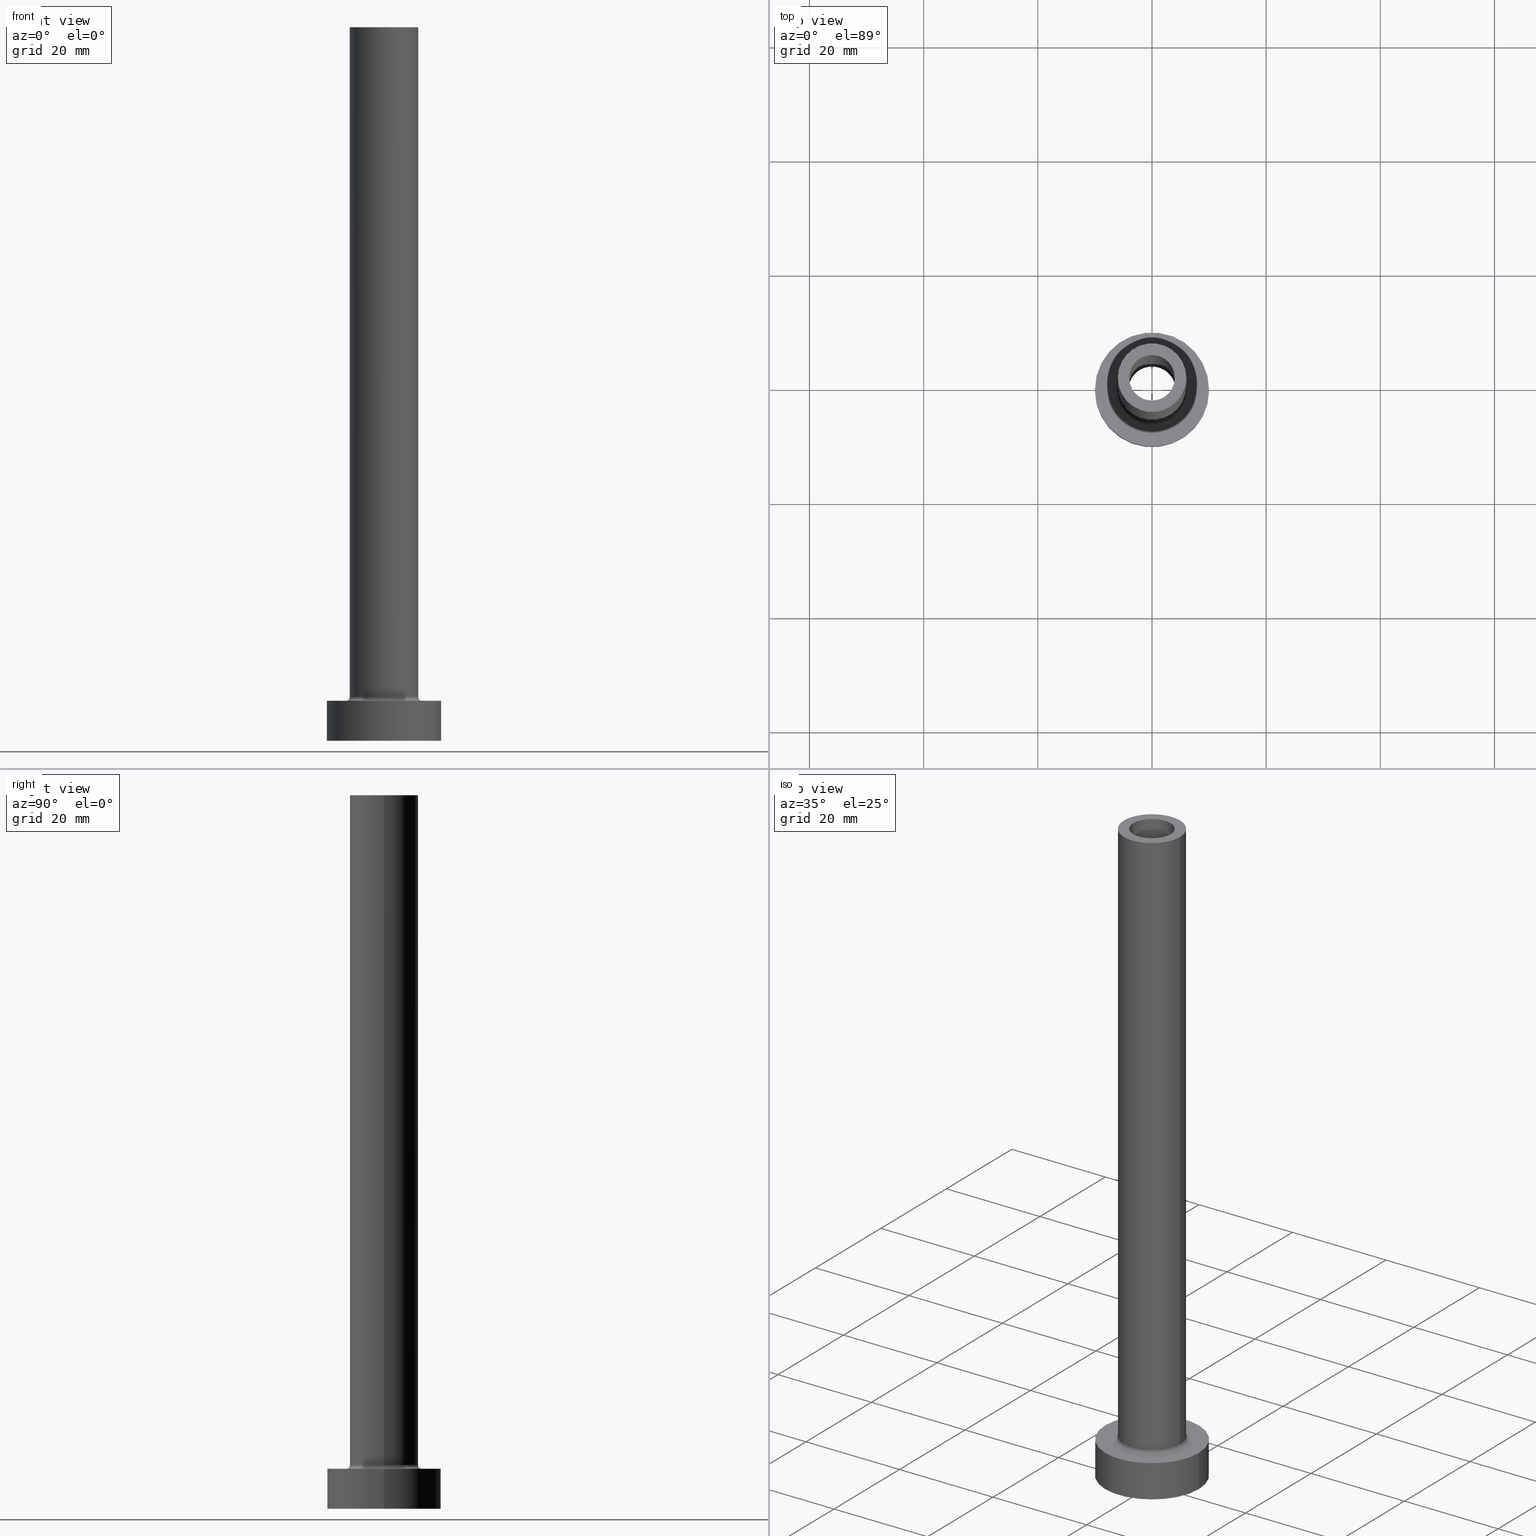
[diagram: canonical four-view strip — front | top / right | iso, engineering-drawing reading convention]
A machine part, canonical four-view strip (front | top / right | iso — engineering-drawing reading convention). The complete STEP part file that produces these views, byte-faithful:
ISO-10303-21;
HEADER;
FILE_DESCRIPTION (( 'STEP AP203' ),
    '1' );
FILE_NAME ('c54d.STEP',
    '2023-02-13T09:11:04',
    ( '' ),
    ( '' ),
    'SwSTEP 2.0',
    'SolidWorks 2019',
    '' );
FILE_SCHEMA (( 'CONFIG_CONTROL_DESIGN' ));
ENDSEC;

DATA;
#1 = FACE_OUTER_BOUND ( 'NONE', #267, .T. ) ;
#2 = EDGE_CURVE ( 'NONE', #231, #159, #436, .T. ) ;
#3 = FACE_OUTER_BOUND ( 'NONE', #362, .T. ) ;
#4 = ORGANIZATION ( 'NEUR�EN�', 'NEUR�EN�', '' ) ;
#5 = DIRECTION ( 'NONE',  ( -1.000000000000000000, 0.000000000000000000, 0.000000000000000000 ) ) ;
#6 = FACE_OUTER_BOUND ( 'NONE', #125, .T. ) ;
#7 = APPROVAL ( #75, 'NEUR�EN�' ) ;
#8 = CIRCLE ( 'NONE', #262, 4.000000000000000000 ) ;
#9 = VECTOR ( 'NONE', #151, 1000.000000000000000 ) ;
#10 = LOCAL_TIME ( 10, 11, 4.000000000000000000, #170 ) ;
#11 = COORDINATED_UNIVERSAL_TIME_OFFSET ( 1, 0, .AHEAD. ) ;
#12 = CARTESIAN_POINT ( 'NONE',  ( -4.150000000000000355, 0.000000000000000000, 91.73797256769668707 ) ) ;
#13 = EDGE_CURVE ( 'NONE', #193, #417, #164, .T. ) ;
#14 = DIRECTION ( 'NONE',  ( 1.000000000000000000, 0.000000000000000000, 0.000000000000000000 ) ) ;
#15 = PLANE ( 'NONE',  #63 ) ;
#16 = DIRECTION ( 'NONE',  ( 0.000000000000000000, 0.000000000000000000, 1.000000000000000000 ) ) ;
#17 = CARTESIAN_POINT ( 'NONE',  ( 0.000000000000000000, 0.000000000000000000, 80.00000000000000000 ) ) ;
#18 = AXIS2_PLACEMENT_3D ( 'NONE', #392, #40, #363 ) ;
#19 = ORIENTED_EDGE ( 'NONE', *, *, #404, .T. ) ;
#20 =( LENGTH_UNIT ( ) NAMED_UNIT ( * ) SI_UNIT ( .MILLI., .METRE. ) );
#21 = EDGE_LOOP ( 'NONE', ( #425, #316, #273, #22 ) ) ;
#22 = ORIENTED_EDGE ( 'NONE', *, *, #302, .F. ) ;
#23 = EDGE_LOOP ( 'NONE', ( #331, #28 ) ) ;
#24 = CARTESIAN_POINT ( 'NONE',  ( 0.000000000000000000, 0.000000000000000000, 7.000000000000000000 ) ) ;
#25 = DIRECTION ( 'NONE',  ( -0.000000000000000000, -0.000000000000000000, -1.000000000000000000 ) ) ;
#26 = CARTESIAN_POINT ( 'NONE',  ( 0.000000000000000000, 0.000000000000000000, 125.0000000000000000 ) ) ;
#27 = EDGE_CURVE ( 'NONE', #334, #236, #229, .T. ) ;
#28 = ORIENTED_EDGE ( 'NONE', *, *, #412, .T. ) ;
#29 = PLANE ( 'NONE',  #408 ) ;
#30 = VERTEX_POINT ( 'NONE', #357 ) ;
#31 = DIRECTION ( 'NONE',  ( 0.000000000000000000, 0.000000000000000000, -1.000000000000000000 ) ) ;
#32 = ORIENTED_EDGE ( 'NONE', *, *, #346, .F. ) ;
#33 = DIRECTION ( 'NONE',  ( -1.000000000000000000, 0.000000000000000000, 0.000000000000000000 ) ) ;
#34 = PERSON_AND_ORGANIZATION ( #314, #4 ) ;
#35 = ORIENTED_EDGE ( 'NONE', *, *, #303, .F. ) ;
#36 = DIRECTION ( 'NONE',  ( 1.000000000000000000, 0.000000000000000000, 0.000000000000000000 ) ) ;
#37 = AXIS2_PLACEMENT_3D ( 'NONE', #278, #400, #173 ) ;
#38 = DATE_AND_TIME ( #364, #454 ) ;
#39 = EDGE_LOOP ( 'NONE', ( #269, #88 ) ) ;
#40 = DIRECTION ( 'NONE',  ( 0.000000000000000000, 0.000000000000000000, 1.000000000000000000 ) ) ;
#41 = APPROVAL_ROLE ( '' ) ;
#42 = DIRECTION ( 'NONE',  ( -0.000000000000000000, -0.000000000000000000, -1.000000000000000000 ) ) ;
#43 = EDGE_CURVE ( 'NONE', #132, #415, #383, .T. ) ;
#44 = AXIS2_PLACEMENT_3D ( 'NONE', #409, #154, #258 ) ;
#45 = CARTESIAN_POINT ( 'NONE',  ( -4.000000000000000000, 0.000000000000000000, 80.00000000000000000 ) ) ;
#46 = CARTESIAN_POINT ( 'NONE',  ( -10.00000000000000000, 0.000000000000000000, 7.000000000000000000 ) ) ;
#47 = DIRECTION ( 'NONE',  ( 0.000000000000000000, 0.000000000000000000, -1.000000000000000000 ) ) ;
#48 = VECTOR ( 'NONE', #188, 1000.000000000000000 ) ;
#49 = DIRECTION ( 'NONE',  ( 0.000000000000000000, 0.000000000000000000, -1.000000000000000000 ) ) ;
#50 = EDGE_LOOP ( 'NONE', ( #123, #19 ) ) ;
#51 = CARTESIAN_POINT ( 'NONE',  ( -4.000000000000000000, 0.000000000000000000, 125.0000000000000000 ) ) ;
#52 = CYLINDRICAL_SURFACE ( 'NONE', #369, 4.150000000000000355 ) ;
#53 = FACE_OUTER_BOUND ( 'NONE', #191, .T. ) ;
#54 = ORIENTED_EDGE ( 'NONE', *, *, #346, .T. ) ;
#55 = AXIS2_PLACEMENT_3D ( 'NONE', #442, #307, #368 ) ;
#56 = DIRECTION ( 'NONE',  ( 1.000000000000000000, 0.000000000000000000, 0.000000000000000000 ) ) ;
#57 = CARTESIAN_POINT ( 'NONE',  ( 4.000000000000000000, 4.898587196589411843E-16, 125.0000000000000000 ) ) ;
#58 = ORIENTED_EDGE ( 'NONE', *, *, #13, .T. ) ;
#59 = DIRECTION ( 'NONE',  ( -0.000000000000000000, -0.000000000000000000, -1.000000000000000000 ) ) ;
#60 = DIRECTION ( 'NONE',  ( 1.000000000000000000, 0.000000000000000000, 0.000000000000000000 ) ) ;
#61 = ORIENTED_EDGE ( 'NONE', *, *, #43, .T. ) ;
#62 = CYLINDRICAL_SURFACE ( 'NONE', #203, 6.000000000000000888 ) ;
#63 = AXIS2_PLACEMENT_3D ( 'NONE', #143, #119, #347 ) ;
#64 = CC_DESIGN_SECURITY_CLASSIFICATION ( #255, ( #265 ) ) ;
#65 = AXIS2_PLACEMENT_3D ( 'NONE', #124, #426, #270 ) ;
#66 = DIRECTION ( 'NONE',  ( 0.000000000000000000, 0.000000000000000000, 1.000000000000000000 ) ) ;
#67 = CARTESIAN_POINT ( 'NONE',  ( 0.000000000000000000, 0.000000000000000000, 0.000000000000000000 ) ) ;
#68 = EDGE_LOOP ( 'NONE', ( #210, #127, #228, #327 ) ) ;
#69 = EDGE_CURVE ( 'NONE', #231, #315, #378, .T. ) ;
#70 = PERSON_AND_ORGANIZATION_ROLE ( 'design_owner' ) ;
#71 = ORIENTED_EDGE ( 'NONE', *, *, #374, .F. ) ;
#72 = AXIS2_PLACEMENT_3D ( 'NONE', #139, #95, #133 ) ;
#73 = APPROVAL_PERSON_ORGANIZATION ( #107, #372, #244 ) ;
#74 = EDGE_CURVE ( 'NONE', #393, #279, #153, .T. ) ;
#75 = APPROVAL_STATUS ( 'not_yet_approved' ) ;
#76 = AXIS2_PLACEMENT_3D ( 'NONE', #257, #216, #117 ) ;
#77 = CARTESIAN_POINT ( 'NONE',  ( 0.000000000000000000, 0.000000000000000000, 91.73797256769668707 ) ) ;
#78 = LINE ( 'NONE', #439, #92 ) ;
#79 = EDGE_CURVE ( 'NONE', #315, #161, #99, .T. ) ;
#80 = CARTESIAN_POINT ( 'NONE',  ( 0.000000000000000000, 0.000000000000000000, 80.00000000000000000 ) ) ;
#81 = ORIENTED_EDGE ( 'NONE', *, *, #404, .F. ) ;
#82 = ORIENTED_EDGE ( 'NONE', *, *, #200, .T. ) ;
#83 = DIRECTION ( 'NONE',  ( 1.000000000000000000, 0.000000000000000000, 0.000000000000000000 ) ) ;
#84 = ORIENTED_EDGE ( 'NONE', *, *, #69, .F. ) ;
#85 = CC_DESIGN_PERSON_AND_ORGANIZATION_ASSIGNMENT ( #111, #178, ( #265 ) ) ;
#86 = ORIENTED_EDGE ( 'NONE', *, *, #69, .T. ) ;
#87 = ADVANCED_BREP_SHAPE_REPRESENTATION ( 'c54d', ( #266, #385 ), #192 ) ;
#88 = ORIENTED_EDGE ( 'NONE', *, *, #43, .F. ) ;
#89 = VECTOR ( 'NONE', #42, 1000.000000000000000 ) ;
#90 = DIRECTION ( 'NONE',  ( 0.000000000000000000, 0.000000000000000000, 1.000000000000000000 ) ) ;
#91 = CARTESIAN_POINT ( 'NONE',  ( 0.000000000000000000, 0.000000000000000000, 0.000000000000000000 ) ) ;
#92 = VECTOR ( 'NONE', #187, 1000.000000000000000 ) ;
#93 = EDGE_CURVE ( 'NONE', #276, #226, #405, .T. ) ;
#94 = ORIENTED_EDGE ( 'NONE', *, *, #110, .F. ) ;
#95 = DIRECTION ( 'NONE',  ( 0.000000000000000000, 0.000000000000000000, 1.000000000000000000 ) ) ;
#96 = LINE ( 'NONE', #213, #282 ) ;
#97 = EDGE_LOOP ( 'NONE', ( #58, #382, #353, #384 ) ) ;
#98 = CARTESIAN_POINT ( 'NONE',  ( 0.000000000000000000, 0.000000000000000000, 7.000000000000000000 ) ) ;
#99 = CIRCLE ( 'NONE', #137, 4.000000000000000000 ) ;
#100 = ORIENTED_EDGE ( 'NONE', *, *, #93, .T. ) ;
#101 = CARTESIAN_POINT ( 'NONE',  ( 10.00000000000000000, 1.224646799147353256E-15, 7.000000000000000000 ) ) ;
#102 = CIRCLE ( 'NONE', #76, 0.7000000000000000666 ) ;
#103 = DATE_AND_TIME ( #330, #176 ) ;
#104 = FACE_OUTER_BOUND ( 'NONE', #21, .T. ) ;
#105 = CARTESIAN_POINT ( 'NONE',  ( 10.00000000000000000, 1.224646799147353256E-15, 0.000000000000000000 ) ) ;
#106 = DIRECTION ( 'NONE',  ( 1.000000000000000000, 0.000000000000000000, 0.000000000000000000 ) ) ;
#107 = PERSON_AND_ORGANIZATION ( #314, #4 ) ;
#108 = LOCAL_TIME ( 10, 11, 4.000000000000000000, #11 ) ;
#109 = FACE_OUTER_BOUND ( 'NONE', #68, .T. ) ;
#110 = EDGE_CURVE ( 'NONE', #417, #30, #96, .T. ) ;
#111 = PERSON_AND_ORGANIZATION ( #314, #4 ) ;
#112 = AXIS2_PLACEMENT_3D ( 'NONE', #98, #237, #390 ) ;
#113 = ADVANCED_FACE ( 'NONE', ( #3 ), #295, .F. ) ;
#114 = FACE_BOUND ( 'NONE', #386, .T. ) ;
#115 = PERSON_AND_ORGANIZATION ( #314, #4 ) ;
#116 = EDGE_CURVE ( 'NONE', #334, #415, #142, .T. ) ;
#117 = DIRECTION ( 'NONE',  ( -1.000000000000000000, 1.224646799147353454E-16, 0.000000000000000000 ) ) ;
#118 = PERSON_AND_ORGANIZATION_ROLE ( 'creator' ) ;
#119 = DIRECTION ( 'NONE',  ( 0.000000000000000000, 0.000000000000000000, 1.000000000000000000 ) ) ;
#120 = CARTESIAN_POINT ( 'NONE',  ( 0.000000000000000000, 0.000000000000000000, 125.0000000000000000 ) ) ;
#121 = CARTESIAN_POINT ( 'NONE',  ( 0.000000000000000000, 0.000000000000000000, 125.0000000000000000 ) ) ;
#122 = ADVANCED_FACE ( 'NONE', ( #6 ), #207, .T. ) ;
#123 = ORIENTED_EDGE ( 'NONE', *, *, #79, .T. ) ;
#124 = CARTESIAN_POINT ( 'NONE',  ( 0.000000000000000000, 0.000000000000000000, 7.699999999999998401 ) ) ;
#125 = EDGE_LOOP ( 'NONE', ( #389, #429, #61, #197 ) ) ;
#126 = DIRECTION ( 'NONE',  ( 0.000000000000000000, 0.000000000000000000, 1.000000000000000000 ) ) ;
#127 = ORIENTED_EDGE ( 'NONE', *, *, #93, .F. ) ;
#128 = PRODUCT ( 'c54d', 'c54d', '', ( #437 ) ) ;
#129 = ORIENTED_EDGE ( 'NONE', *, *, #155, .F. ) ;
#130 = CARTESIAN_POINT ( 'NONE',  ( -6.700000000000001066, 8.205133554287267548E-16, 6.999999999999999112 ) ) ;
#131 = DIRECTION ( 'NONE',  ( 1.000000000000000000, 0.000000000000000000, -0.000000000000000000 ) ) ;
#132 = VERTEX_POINT ( 'NONE', #105 ) ;
#133 = DIRECTION ( 'NONE',  ( 1.000000000000000000, 0.000000000000000000, -0.000000000000000000 ) ) ;
#134 = ORIENTED_EDGE ( 'NONE', *, *, #2, .F. ) ;
#135 = AXIS2_PLACEMENT_3D ( 'NONE', #355, #16, #264 ) ;
#136 = DIRECTION ( 'NONE',  ( -1.000000000000000000, 0.000000000000000000, 0.000000000000000000 ) ) ;
#137 = AXIS2_PLACEMENT_3D ( 'NONE', #211, #66, #338 ) ;
#138 = ORIENTED_EDGE ( 'NONE', *, *, #74, .F. ) ;
#139 = CARTESIAN_POINT ( 'NONE',  ( 0.000000000000000000, 0.000000000000000000, 125.0000000000000000 ) ) ;
#140 = AXIS2_PLACEMENT_3D ( 'NONE', #177, #285, #290 ) ;
#141 = CIRCLE ( 'NONE', #301, 0.7000000000000000666 ) ;
#142 = LINE ( 'NONE', #433, #89 ) ;
#143 = CARTESIAN_POINT ( 'NONE',  ( 0.000000000000000000, 0.000000000000000000, 7.000000000000000000 ) ) ;
#144 = ADVANCED_FACE ( 'NONE', ( #243, #397 ), #298, .T. ) ;
#145 = APPLICATION_PROTOCOL_DEFINITION ( 'international standard', 'config_control_design', 1994, #310 ) ;
#146 = EDGE_CURVE ( 'NONE', #415, #132, #444, .T. ) ;
#147 = UNCERTAINTY_MEASURE_WITH_UNIT (LENGTH_MEASURE( 1.000000000000000082E-05 ), #20, 'distance_accuracy_value', 'NONE');
#148 = CC_DESIGN_DATE_AND_TIME_ASSIGNMENT ( #402, #215, ( #255 ) ) ;
#149 = APPROVAL_ROLE ( '' ) ;
#150 = TOROIDAL_SURFACE ( 'NONE', #65, 6.700000000000001066, 0.6999999999999999556 ) ;
#151 = DIRECTION ( 'NONE',  ( -0.000000000000000000, -0.000000000000000000, -1.000000000000000000 ) ) ;
#152 = DATE_AND_TIME ( #182, #205 ) ;
#153 = CIRCLE ( 'NONE', #37, 6.000000000000000888 ) ;
#154 = DIRECTION ( 'NONE',  ( 0.000000000000000000, 0.000000000000000000, 1.000000000000000000 ) ) ;
#155 = EDGE_CURVE ( 'NONE', #221, #287, #156, .T. ) ;
#156 = CIRCLE ( 'NONE', #361, 6.700000000000001066 ) ;
#157 = CYLINDRICAL_SURFACE ( 'NONE', #445, 4.150000000000000355 ) ;
#158 = PLANE ( 'NONE',  #44 ) ;
#159 = VERTEX_POINT ( 'NONE', #458 ) ;
#160 = ORIENTED_EDGE ( 'NONE', *, *, #455, .F. ) ;
#161 = VERTEX_POINT ( 'NONE', #422 ) ;
#162 = ORIENTED_EDGE ( 'NONE', *, *, #2, .T. ) ;
#163 = CARTESIAN_POINT ( 'NONE',  ( 6.700000000000001066, 0.000000000000000000, 6.999999999999999112 ) ) ;
#164 = CIRCLE ( 'NONE', #135, 4.150000000000000355 ) ;
#165 = CARTESIAN_POINT ( 'NONE',  ( 0.000000000000000000, 0.000000000000000000, 0.000000000000000000 ) ) ;
#166 = DIRECTION ( 'NONE',  ( 0.000000000000000000, 0.000000000000000000, 1.000000000000000000 ) ) ;
#167 = APPROVAL_STATUS ( 'not_yet_approved' ) ;
#168 = ORIENTED_EDGE ( 'NONE', *, *, #303, .T. ) ;
#169 = CC_DESIGN_DATE_AND_TIME_ASSIGNMENT ( #286, #360, ( #322 ) ) ;
#170 = COORDINATED_UNIVERSAL_TIME_OFFSET ( 1, 0, .AHEAD. ) ;
#171 = ORIENTED_EDGE ( 'NONE', *, *, #27, .F. ) ;
#172 = CARTESIAN_POINT ( 'NONE',  ( -4.000000000000000000, 0.000000000000000000, 125.0000000000000000 ) ) ;
#173 = DIRECTION ( 'NONE',  ( 1.000000000000000000, 0.000000000000000000, 0.000000000000000000 ) ) ;
#174 = PERSON_AND_ORGANIZATION ( #314, #4 ) ;
#175 = ORIENTED_EDGE ( 'NONE', *, *, #206, .T. ) ;
#176 = LOCAL_TIME ( 10, 11, 4.000000000000000000, #459 ) ;
#177 = CARTESIAN_POINT ( 'NONE',  ( 0.000000000000000000, 0.000000000000000000, 7.000000000000000000 ) ) ;
#178 = PERSON_AND_ORGANIZATION_ROLE ( 'design_supplier' ) ;
#179 = CC_DESIGN_APPROVAL ( #7, ( #255 ) ) ;
#180 = PERSON_AND_ORGANIZATION_ROLE ( 'classification_officer' ) ;
#181 = FACE_BOUND ( 'NONE', #451, .T. ) ;
#182 = CALENDAR_DATE ( 2023, 13, 2 ) ;
#183 = CARTESIAN_POINT ( 'NONE',  ( 0.000000000000000000, 0.000000000000000000, 80.00000000000000000 ) ) ;
#184 = DIRECTION ( 'NONE',  ( -1.000000000000000000, 0.000000000000000000, 0.000000000000000000 ) ) ;
#185 = CIRCLE ( 'NONE', #413, 6.000000000000000888 ) ;
#186 = CIRCLE ( 'NONE', #263, 6.700000000000001066 ) ;
#187 = DIRECTION ( 'NONE',  ( -0.000000000000000000, -0.000000000000000000, -1.000000000000000000 ) ) ;
#188 = DIRECTION ( 'NONE',  ( 0.000000000000000000, 0.000000000000000000, -1.000000000000000000 ) ) ;
#189 = LINE ( 'NONE', #12, #313 ) ;
#190 = AXIS2_PLACEMENT_3D ( 'NONE', #24, #319, #450 ) ;
#191 = EDGE_LOOP ( 'NONE', ( #318, #350, #86, #81 ) ) ;
#192 =( GEOMETRIC_REPRESENTATION_CONTEXT ( 3 ) GLOBAL_UNCERTAINTY_ASSIGNED_CONTEXT ( ( #147 ) ) GLOBAL_UNIT_ASSIGNED_CONTEXT ( ( #20, #299, #291 ) ) REPRESENTATION_CONTEXT ( 'NONE', 'WORKASPACE' ) );
#193 = VERTEX_POINT ( 'NONE', #427 ) ;
#194 = ORIENTED_EDGE ( 'NONE', *, *, #155, .T. ) ;
#195 = CYLINDRICAL_SURFACE ( 'NONE', #424, 4.000000000000000000 ) ;
#196 = CYLINDRICAL_SURFACE ( 'NONE', #112, 10.00000000000000000 ) ;
#197 = ORIENTED_EDGE ( 'NONE', *, *, #116, .F. ) ;
#198 = CARTESIAN_POINT ( 'NONE',  ( 0.000000000000000000, 0.000000000000000000, 7.000000000000000000 ) ) ;
#199 = DIRECTION ( 'NONE',  ( -0.000000000000000000, -0.000000000000000000, -1.000000000000000000 ) ) ;
#200 = EDGE_CURVE ( 'NONE', #233, #30, #300, .T. ) ;
#201 = CALENDAR_DATE ( 2023, 13, 2 ) ;
#202 = AXIS2_PLACEMENT_3D ( 'NONE', #183, #440, #14 ) ;
#203 = AXIS2_PLACEMENT_3D ( 'NONE', #26, #321, #33 ) ;
#204 = DIRECTION ( 'NONE',  ( 0.000000000000000000, 0.000000000000000000, -1.000000000000000000 ) ) ;
#205 = LOCAL_TIME ( 10, 11, 4.000000000000000000, #306 ) ;
#206 = EDGE_CURVE ( 'NONE', #159, #161, #230, .T. ) ;
#207 = CYLINDRICAL_SURFACE ( 'NONE', #140, 10.00000000000000000 ) ;
#208 = CARTESIAN_POINT ( 'NONE',  ( -6.000000000000000888, 0.000000000000000000, 125.0000000000000000 ) ) ;
#209 = COORDINATED_UNIVERSAL_TIME_OFFSET ( 1, 0, .AHEAD. ) ;
#210 = ORIENTED_EDGE ( 'NONE', *, *, #391, .F. ) ;
#211 = CARTESIAN_POINT ( 'NONE',  ( 0.000000000000000000, 0.000000000000000000, 80.00000000000000000 ) ) ;
#212 = CC_DESIGN_APPROVAL ( #235, ( #265 ) ) ;
#213 = CARTESIAN_POINT ( 'NONE',  ( 4.150000000000000355, 5.082284216461515156E-16, 91.73797256769668707 ) ) ;
#214 = EDGE_CURVE ( 'NONE', #30, #233, #247, .T. ) ;
#215 = DATE_TIME_ROLE ( 'classification_date' ) ;
#216 = DIRECTION ( 'NONE',  ( 1.224646799147353207E-16, 1.000000000000000000, -0.000000000000000000 ) ) ;
#217 = CIRCLE ( 'NONE', #224, 10.00000000000000000 ) ;
#218 = FACE_OUTER_BOUND ( 'NONE', #97, .T. ) ;
#219 = CARTESIAN_POINT ( 'NONE',  ( -6.000000000000000888, 0.000000000000000000, 7.699999999999998401 ) ) ;
#220 = CC_DESIGN_PERSON_AND_ORGANIZATION_ASSIGNMENT ( #296, #118, ( #265 ) ) ;
#221 = VERTEX_POINT ( 'NONE', #163 ) ;
#222 = ADVANCED_FACE ( 'NONE', ( #1 ), #196, .T. ) ;
#223 = DIRECTION ( 'NONE',  ( 1.000000000000000000, 0.000000000000000000, 0.000000000000000000 ) ) ;
#224 = AXIS2_PLACEMENT_3D ( 'NONE', #225, #379, #106 ) ;
#225 = CARTESIAN_POINT ( 'NONE',  ( 0.000000000000000000, 0.000000000000000000, 7.000000000000000000 ) ) ;
#226 = VERTEX_POINT ( 'NONE', #356 ) ;
#227 = ADVANCED_FACE ( 'NONE', ( #104 ), #62, .T. ) ;
#228 = ORIENTED_EDGE ( 'NONE', *, *, #302, .T. ) ;
#229 = CIRCLE ( 'NONE', #190, 10.00000000000000000 ) ;
#230 = LINE ( 'NONE', #57, #423 ) ;
#231 = VERTEX_POINT ( 'NONE', #172 ) ;
#232 = EDGE_CURVE ( 'NONE', #279, #393, #275, .T. ) ;
#233 = VERTEX_POINT ( 'NONE', #430 ) ;
#234 = DIRECTION ( 'NONE',  ( -1.000000000000000000, 0.000000000000000000, 0.000000000000000000 ) ) ;
#235 = APPROVAL ( #167, 'NEUR�EN�' ) ;
#236 = VERTEX_POINT ( 'NONE', #101 ) ;
#237 = DIRECTION ( 'NONE',  ( -0.000000000000000000, -0.000000000000000000, -1.000000000000000000 ) ) ;
#238 = APPROVAL_DATE_TIME ( #38, #372 ) ;
#239 = AXIS2_PLACEMENT_3D ( 'NONE', #336, #126, #326 ) ;
#240 = ORIENTED_EDGE ( 'NONE', *, *, #116, .T. ) ;
#241 = DIRECTION ( 'NONE',  ( 1.000000000000000000, 0.000000000000000000, 0.000000000000000000 ) ) ;
#242 = DIRECTION ( 'NONE',  ( 0.000000000000000000, 0.000000000000000000, 1.000000000000000000 ) ) ;
#243 = FACE_BOUND ( 'NONE', #354, .T. ) ;
#244 = APPROVAL_ROLE ( '' ) ;
#245 = CARTESIAN_POINT ( 'NONE',  ( -10.00000000000000000, 0.000000000000000000, 0.000000000000000000 ) ) ;
#246 = DIRECTION ( 'NONE',  ( 1.000000000000000000, 0.000000000000000000, 0.000000000000000000 ) ) ;
#247 = CIRCLE ( 'NONE', #254, 4.150000000000000355 ) ;
#248 = CC_DESIGN_APPROVAL ( #372, ( #322 ) ) ;
#249 = APPROVAL_STATUS ( 'not_yet_approved' ) ;
#250 = APPLICATION_CONTEXT ( 'configuration controlled 3d designs of mechanical parts and assemblies' ) ;
#251 = SECURITY_CLASSIFICATION_LEVEL ( 'unclassified' ) ;
#252 = CC_DESIGN_PERSON_AND_ORGANIZATION_ASSIGNMENT ( #333, #70, ( #128 ) ) ;
#253 = FACE_OUTER_BOUND ( 'NONE', #419, .T. ) ;
#254 = AXIS2_PLACEMENT_3D ( 'NONE', #396, #280, #428 ) ;
#255 = SECURITY_CLASSIFICATION ( '', '', #251 ) ;
#256 = APPROVAL_DATE_TIME ( #152, #7 ) ;
#257 = CARTESIAN_POINT ( 'NONE',  ( -6.700000000000001066, 8.205133554287267548E-16, 7.699999999999998401 ) ) ;
#258 = DIRECTION ( 'NONE',  ( 1.000000000000000000, 0.000000000000000000, -0.000000000000000000 ) ) ;
#259 = CALENDAR_DATE ( 2023, 13, 2 ) ;
#260 = ORIENTED_EDGE ( 'NONE', *, *, #374, .T. ) ;
#261 = DIRECTION ( 'NONE',  ( 0.000000000000000000, 0.000000000000000000, -1.000000000000000000 ) ) ;
#262 = AXIS2_PLACEMENT_3D ( 'NONE', #292, #406, #376 ) ;
#263 = AXIS2_PLACEMENT_3D ( 'NONE', #198, #59, #274 ) ;
#264 = DIRECTION ( 'NONE',  ( 1.000000000000000000, 0.000000000000000000, 0.000000000000000000 ) ) ;
#265 = PRODUCT_DEFINITION_FORMATION_WITH_SPECIFIED_SOURCE ( 'LIBOVOLN�', '', #128, .NOT_KNOWN. ) ;
#266 = MANIFOLD_SOLID_BREP ( 'Odebrat vysunut�m4', #375 ) ;
#267 = EDGE_LOOP ( 'NONE', ( #160, #171, #240, #457 ) ) ;
#268 = ORIENTED_EDGE ( 'NONE', *, *, #312, .F. ) ;
#269 = ORIENTED_EDGE ( 'NONE', *, *, #146, .F. ) ;
#270 = DIRECTION ( 'NONE',  ( 1.000000000000000000, 0.000000000000000000, 0.000000000000000000 ) ) ;
#271 = DIRECTION ( 'NONE',  ( -0.000000000000000000, -0.000000000000000000, -1.000000000000000000 ) ) ;
#272 = PRODUCT_DEFINITION_SHAPE ( 'NONE', 'NONE',  #322 ) ;
#273 = ORIENTED_EDGE ( 'NONE', *, *, #232, .T. ) ;
#274 = DIRECTION ( 'NONE',  ( 1.000000000000000000, 0.000000000000000000, 0.000000000000000000 ) ) ;
#275 = CIRCLE ( 'NONE', #345, 6.000000000000000888 ) ;
#276 = VERTEX_POINT ( 'NONE', #208 ) ;
#277 = CARTESIAN_POINT ( 'NONE',  ( 0.000000000000000000, 0.000000000000000000, 7.000000000000000000 ) ) ;
#278 = CARTESIAN_POINT ( 'NONE',  ( 0.000000000000000000, 0.000000000000000000, 7.699999999999998401 ) ) ;
#279 = VERTEX_POINT ( 'NONE', #332 ) ;
#280 = DIRECTION ( 'NONE',  ( -0.000000000000000000, -0.000000000000000000, -1.000000000000000000 ) ) ;
#281 = APPROVAL_DATE_TIME ( #103, #235 ) ;
#282 = VECTOR ( 'NONE', #366, 1000.000000000000000 ) ;
#283 = ORIENTED_EDGE ( 'NONE', *, *, #367, .T. ) ;
#284 = DIRECTION ( 'NONE',  ( 0.000000000000000000, 0.000000000000000000, 1.000000000000000000 ) ) ;
#285 = DIRECTION ( 'NONE',  ( -0.000000000000000000, -0.000000000000000000, -1.000000000000000000 ) ) ;
#286 = DATE_AND_TIME ( #201, #10 ) ;
#287 = VERTEX_POINT ( 'NONE', #130 ) ;
#288 = TOROIDAL_SURFACE ( 'NONE', #55, 6.700000000000001066, 0.6999999999999999556 ) ;
#289 = CARTESIAN_POINT ( 'NONE',  ( -6.000000000000000888, 0.000000000000000000, 125.0000000000000000 ) ) ;
#290 = DIRECTION ( 'NONE',  ( -1.000000000000000000, 0.000000000000000000, 0.000000000000000000 ) ) ;
#291 =( NAMED_UNIT ( * ) SI_UNIT ( $, .STERADIAN. ) SOLID_ANGLE_UNIT ( ) );
#292 = CARTESIAN_POINT ( 'NONE',  ( 0.000000000000000000, 0.000000000000000000, 125.0000000000000000 ) ) ;
#293 = CC_DESIGN_PERSON_AND_ORGANIZATION_ASSIGNMENT ( #370, #180, ( #255 ) ) ;
#294 = EDGE_CURVE ( 'NONE', #226, #276, #185, .T. ) ;
#295 = CYLINDRICAL_SURFACE ( 'NONE', #418, 4.000000000000000000 ) ;
#296 = PERSON_AND_ORGANIZATION ( #314, #4 ) ;
#297 = DESIGN_CONTEXT ( 'detailed design', #310, 'design' ) ;
#298 = PLANE ( 'NONE',  #72 ) ;
#299 =( NAMED_UNIT ( * ) PLANE_ANGLE_UNIT ( ) SI_UNIT ( $, .RADIAN. ) );
#300 = CIRCLE ( 'NONE', #407, 4.150000000000000355 ) ;
#301 = AXIS2_PLACEMENT_3D ( 'NONE', #371, #343, #341 ) ;
#302 = EDGE_CURVE ( 'NONE', #276, #393, #394, .T. ) ;
#303 = EDGE_CURVE ( 'NONE', #417, #193, #453, .T. ) ;
#304 = CARTESIAN_POINT ( 'NONE',  ( 0.000000000000000000, 0.000000000000000000, 91.73797256769668707 ) ) ;
#305 = PRODUCT_RELATED_PRODUCT_CATEGORY ( 'detail', '', ( #128 ) ) ;
#306 = COORDINATED_UNIVERSAL_TIME_OFFSET ( 1, 0, .AHEAD. ) ;
#307 = DIRECTION ( 'NONE',  ( 0.000000000000000000, 0.000000000000000000, 1.000000000000000000 ) ) ;
#308 = DIRECTION ( 'NONE',  ( -1.000000000000000000, 0.000000000000000000, 0.000000000000000000 ) ) ;
#309 = DIRECTION ( 'NONE',  ( -0.000000000000000000, -0.000000000000000000, -1.000000000000000000 ) ) ;
#310 = APPLICATION_CONTEXT ( 'configuration controlled 3d designs of mechanical parts and assemblies' ) ;
#311 = ORIENTED_EDGE ( 'NONE', *, *, #232, .F. ) ;
#312 = EDGE_CURVE ( 'NONE', #159, #231, #8, .T. ) ;
#313 = VECTOR ( 'NONE', #261, 1000.000000000000000 ) ;
#314 = PERSON ( 'NEUR�EN�', 'NEUR�EN�', 'NEUR�EN�', ('NEUR�EN�'), ('NEUR�EN�'), ('NEUR�EN�') ) ;
#315 = VERTEX_POINT ( 'NONE', #45 ) ;
#316 = ORIENTED_EDGE ( 'NONE', *, *, #391, .T. ) ;
#317 = ADVANCED_FACE ( 'NONE', ( #181, #344 ), #15, .T. ) ;
#318 = ORIENTED_EDGE ( 'NONE', *, *, #206, .F. ) ;
#319 = DIRECTION ( 'NONE',  ( 0.000000000000000000, 0.000000000000000000, 1.000000000000000000 ) ) ;
#320 = ORIENTED_EDGE ( 'NONE', *, *, #214, .F. ) ;
#321 = DIRECTION ( 'NONE',  ( -0.000000000000000000, -0.000000000000000000, -1.000000000000000000 ) ) ;
#322 = PRODUCT_DEFINITION ( 'NEZN�M�', '', #265, #297 ) ;
#323 = DIRECTION ( 'NONE',  ( 0.000000000000000000, 0.000000000000000000, 1.000000000000000000 ) ) ;
#324 = FACE_BOUND ( 'NONE', #50, .T. ) ;
#325 = EDGE_LOOP ( 'NONE', ( #100, #447 ) ) ;
#326 = DIRECTION ( 'NONE',  ( 1.000000000000000000, 0.000000000000000000, 0.000000000000000000 ) ) ;
#327 = ORIENTED_EDGE ( 'NONE', *, *, #74, .T. ) ;
#328 = CARTESIAN_POINT ( 'NONE',  ( 0.000000000000000000, 0.000000000000000000, 7.699999999999998401 ) ) ;
#329 = CARTESIAN_POINT ( 'NONE',  ( 0.000000000000000000, 0.000000000000000000, 125.0000000000000000 ) ) ;
#330 = CALENDAR_DATE ( 2023, 13, 2 ) ;
#331 = ORIENTED_EDGE ( 'NONE', *, *, #27, .T. ) ;
#332 = CARTESIAN_POINT ( 'NONE',  ( 6.000000000000000888, 7.347880794884120722E-16, 7.699999999999998401 ) ) ;
#333 = PERSON_AND_ORGANIZATION ( #314, #4 ) ;
#334 = VERTEX_POINT ( 'NONE', #46 ) ;
#335 = APPROVAL_PERSON_ORGANIZATION ( #115, #7, #149 ) ;
#336 = CARTESIAN_POINT ( 'NONE',  ( 0.000000000000000000, 0.000000000000000000, 0.000000000000000000 ) ) ;
#337 = ADVANCED_FACE ( 'NONE', ( #253 ), #157, .F. ) ;
#338 = DIRECTION ( 'NONE',  ( 1.000000000000000000, 0.000000000000000000, 0.000000000000000000 ) ) ;
#339 = CC_DESIGN_PERSON_AND_ORGANIZATION_ASSIGNMENT ( #34, #401, ( #322 ) ) ;
#340 = ADVANCED_FACE ( 'NONE', ( #114, #373 ), #158, .F. ) ;
#341 = DIRECTION ( 'NONE',  ( 0.000000000000000000, 0.000000000000000000, -1.000000000000000000 ) ) ;
#342 = SHAPE_DEFINITION_REPRESENTATION ( #272, #87 ) ;
#343 = DIRECTION ( 'NONE',  ( 0.000000000000000000, -1.000000000000000000, 0.000000000000000000 ) ) ;
#344 = FACE_OUTER_BOUND ( 'NONE', #23, .T. ) ;
#345 = AXIS2_PLACEMENT_3D ( 'NONE', #328, #284, #452 ) ;
#346 = EDGE_CURVE ( 'NONE', #279, #221, #141, .T. ) ;
#347 = DIRECTION ( 'NONE',  ( 1.000000000000000000, 0.000000000000000000, -0.000000000000000000 ) ) ;
#348 = ADVANCED_FACE ( 'NONE', ( #441 ), #288, .F. ) ;
#349 = FACE_OUTER_BOUND ( 'NONE', #395, .T. ) ;
#350 = ORIENTED_EDGE ( 'NONE', *, *, #312, .T. ) ;
#351 = DIRECTION ( 'NONE',  ( 0.000000000000000000, 0.000000000000000000, -1.000000000000000000 ) ) ;
#352 = AXIS2_PLACEMENT_3D ( 'NONE', #80, #411, #83 ) ;
#353 = ORIENTED_EDGE ( 'NONE', *, *, #214, .T. ) ;
#354 = EDGE_LOOP ( 'NONE', ( #134, #268 ) ) ;
#355 = CARTESIAN_POINT ( 'NONE',  ( 0.000000000000000000, 0.000000000000000000, 80.00000000000000000 ) ) ;
#356 = CARTESIAN_POINT ( 'NONE',  ( 6.000000000000000888, 7.347880794884120722E-16, 125.0000000000000000 ) ) ;
#357 = CARTESIAN_POINT ( 'NONE',  ( 4.150000000000000355, 5.082284216461515156E-16, 0.000000000000000000 ) ) ;
#358 = FACE_OUTER_BOUND ( 'NONE', #381, .T. ) ;
#359 = ORIENTED_EDGE ( 'NONE', *, *, #79, .F. ) ;
#360 = DATE_TIME_ROLE ( 'creation_date' ) ;
#361 = AXIS2_PLACEMENT_3D ( 'NONE', #277, #271, #60 ) ;
#362 = EDGE_LOOP ( 'NONE', ( #162, #175, #359, #84 ) ) ;
#363 = DIRECTION ( 'NONE',  ( 1.000000000000000000, 0.000000000000000000, 0.000000000000000000 ) ) ;
#364 = CALENDAR_DATE ( 2023, 13, 2 ) ;
#365 = AXIS2_PLACEMENT_3D ( 'NONE', #435, #309, #5 ) ;
#366 = DIRECTION ( 'NONE',  ( 0.000000000000000000, 0.000000000000000000, -1.000000000000000000 ) ) ;
#367 = EDGE_CURVE ( 'NONE', #193, #233, #189, .T. ) ;
#368 = DIRECTION ( 'NONE',  ( 1.000000000000000000, 0.000000000000000000, 0.000000000000000000 ) ) ;
#369 = AXIS2_PLACEMENT_3D ( 'NONE', #304, #47, #308 ) ;
#370 = PERSON_AND_ORGANIZATION ( #314, #4 ) ;
#371 = CARTESIAN_POINT ( 'NONE',  ( 6.700000000000001066, 0.000000000000000000, 7.699999999999998401 ) ) ;
#372 = APPROVAL ( #249, 'NEUR�EN�' ) ;
#373 = FACE_OUTER_BOUND ( 'NONE', #39, .T. ) ;
#374 = EDGE_CURVE ( 'NONE', #393, #287, #102, .T. ) ;
#375 = CLOSED_SHELL ( 'NONE', ( #113, #380, #449, #227, #122, #222, #317, #340, #398, #144, #348, #337, #461, #448 ) ) ;
#376 = DIRECTION ( 'NONE',  ( 1.000000000000000000, 0.000000000000000000, 0.000000000000000000 ) ) ;
#377 = ORIENTED_EDGE ( 'NONE', *, *, #200, .F. ) ;
#378 = LINE ( 'NONE', #51, #48 ) ;
#379 = DIRECTION ( 'NONE',  ( 0.000000000000000000, 0.000000000000000000, 1.000000000000000000 ) ) ;
#380 = ADVANCED_FACE ( 'NONE', ( #218 ), #52, .F. ) ;
#381 = EDGE_LOOP ( 'NONE', ( #416, #35 ) ) ;
#382 = ORIENTED_EDGE ( 'NONE', *, *, #110, .T. ) ;
#383 = CIRCLE ( 'NONE', #403, 10.00000000000000000 ) ;
#384 = ORIENTED_EDGE ( 'NONE', *, *, #367, .F. ) ;
#385 = AXIS2_PLACEMENT_3D ( 'NONE', #67, #242, #246 ) ;
#386 = EDGE_LOOP ( 'NONE', ( #377, #320 ) ) ;
#387 = ORIENTED_EDGE ( 'NONE', *, *, #460, .T. ) ;
#388 = CARTESIAN_POINT ( 'NONE',  ( 0.000000000000000000, 0.000000000000000000, 125.0000000000000000 ) ) ;
#389 = ORIENTED_EDGE ( 'NONE', *, *, #412, .F. ) ;
#390 = DIRECTION ( 'NONE',  ( -1.000000000000000000, 0.000000000000000000, 0.000000000000000000 ) ) ;
#391 = EDGE_CURVE ( 'NONE', #226, #279, #78, .T. ) ;
#392 = CARTESIAN_POINT ( 'NONE',  ( 0.000000000000000000, 0.000000000000000000, 125.0000000000000000 ) ) ;
#393 = VERTEX_POINT ( 'NONE', #219 ) ;
#394 = LINE ( 'NONE', #289, #9 ) ;
#395 = EDGE_LOOP ( 'NONE', ( #138, #260, #129, #32 ) ) ;
#396 = CARTESIAN_POINT ( 'NONE',  ( 0.000000000000000000, 0.000000000000000000, 0.000000000000000000 ) ) ;
#397 = FACE_OUTER_BOUND ( 'NONE', #325, .T. ) ;
#398 = ADVANCED_FACE ( 'NONE', ( #109 ), #410, .T. ) ;
#399 = CARTESIAN_POINT ( 'NONE',  ( 4.150000000000000355, 5.082284216461515156E-16, 80.00000000000000000 ) ) ;
#400 = DIRECTION ( 'NONE',  ( 0.000000000000000000, 0.000000000000000000, 1.000000000000000000 ) ) ;
#401 = PERSON_AND_ORGANIZATION_ROLE ( 'creator' ) ;
#402 = DATE_AND_TIME ( #259, #108 ) ;
#403 = AXIS2_PLACEMENT_3D ( 'NONE', #165, #323, #223 ) ;
#404 = EDGE_CURVE ( 'NONE', #161, #315, #438, .T. ) ;
#405 = CIRCLE ( 'NONE', #18, 6.000000000000000888 ) ;
#406 = DIRECTION ( 'NONE',  ( 0.000000000000000000, 0.000000000000000000, 1.000000000000000000 ) ) ;
#407 = AXIS2_PLACEMENT_3D ( 'NONE', #91, #199, #36 ) ;
#408 = AXIS2_PLACEMENT_3D ( 'NONE', #17, #166, #131 ) ;
#409 = CARTESIAN_POINT ( 'NONE',  ( 0.000000000000000000, 0.000000000000000000, 0.000000000000000000 ) ) ;
#410 = CYLINDRICAL_SURFACE ( 'NONE', #365, 6.000000000000000888 ) ;
#411 = DIRECTION ( 'NONE',  ( 0.000000000000000000, 0.000000000000000000, 1.000000000000000000 ) ) ;
#412 = EDGE_CURVE ( 'NONE', #236, #334, #217, .T. ) ;
#413 = AXIS2_PLACEMENT_3D ( 'NONE', #388, #432, #241 ) ;
#414 = APPROVAL_PERSON_ORGANIZATION ( #174, #235, #41 ) ;
#415 = VERTEX_POINT ( 'NONE', #245 ) ;
#416 = ORIENTED_EDGE ( 'NONE', *, *, #13, .F. ) ;
#417 = VERTEX_POINT ( 'NONE', #399 ) ;
#418 = AXIS2_PLACEMENT_3D ( 'NONE', #329, #31, #136 ) ;
#419 = EDGE_LOOP ( 'NONE', ( #94, #168, #283, #82 ) ) ;
#420 = AXIS2_PLACEMENT_3D ( 'NONE', #120, #90, #56 ) ;
#421 = CARTESIAN_POINT ( 'NONE',  ( 10.00000000000000000, 1.224646799147353256E-15, 7.000000000000000000 ) ) ;
#422 = CARTESIAN_POINT ( 'NONE',  ( 4.000000000000000000, 4.898587196589411843E-16, 80.00000000000000000 ) ) ;
#423 = VECTOR ( 'NONE', #204, 1000.000000000000000 ) ;
#424 = AXIS2_PLACEMENT_3D ( 'NONE', #121, #351, #234 ) ;
#425 = ORIENTED_EDGE ( 'NONE', *, *, #294, .F. ) ;
#426 = DIRECTION ( 'NONE',  ( 0.000000000000000000, 0.000000000000000000, 1.000000000000000000 ) ) ;
#427 = CARTESIAN_POINT ( 'NONE',  ( -4.150000000000000355, 0.000000000000000000, 80.00000000000000000 ) ) ;
#428 = DIRECTION ( 'NONE',  ( 1.000000000000000000, 0.000000000000000000, 0.000000000000000000 ) ) ;
#429 = ORIENTED_EDGE ( 'NONE', *, *, #455, .T. ) ;
#430 = CARTESIAN_POINT ( 'NONE',  ( -4.150000000000000355, 0.000000000000000000, 0.000000000000000000 ) ) ;
#431 = VECTOR ( 'NONE', #25, 1000.000000000000000 ) ;
#432 = DIRECTION ( 'NONE',  ( 0.000000000000000000, 0.000000000000000000, 1.000000000000000000 ) ) ;
#433 = CARTESIAN_POINT ( 'NONE',  ( -10.00000000000000000, 0.000000000000000000, 7.000000000000000000 ) ) ;
#434 = APPLICATION_PROTOCOL_DEFINITION ( 'international standard', 'config_control_design', 1994, #250 ) ;
#435 = CARTESIAN_POINT ( 'NONE',  ( 0.000000000000000000, 0.000000000000000000, 125.0000000000000000 ) ) ;
#436 = CIRCLE ( 'NONE', #420, 4.000000000000000000 ) ;
#437 = MECHANICAL_CONTEXT ( 'NONE', #250, 'mechanical' ) ;
#438 = CIRCLE ( 'NONE', #352, 4.000000000000000000 ) ;
#439 = CARTESIAN_POINT ( 'NONE',  ( 6.000000000000000888, 7.347880794884120722E-16, 125.0000000000000000 ) ) ;
#440 = DIRECTION ( 'NONE',  ( 0.000000000000000000, 0.000000000000000000, 1.000000000000000000 ) ) ;
#441 = FACE_OUTER_BOUND ( 'NONE', #446, .T. ) ;
#442 = CARTESIAN_POINT ( 'NONE',  ( 0.000000000000000000, 0.000000000000000000, 7.699999999999998401 ) ) ;
#443 = ORIENTED_EDGE ( 'NONE', *, *, #460, .F. ) ;
#444 = CIRCLE ( 'NONE', #239, 10.00000000000000000 ) ;
#445 = AXIS2_PLACEMENT_3D ( 'NONE', #77, #49, #184 ) ;
#446 = EDGE_LOOP ( 'NONE', ( #71, #311, #54, #443 ) ) ;
#447 = ORIENTED_EDGE ( 'NONE', *, *, #294, .T. ) ;
#448 = ADVANCED_FACE ( 'NONE', ( #53 ), #195, .F. ) ;
#449 = ADVANCED_FACE ( 'NONE', ( #349 ), #150, .F. ) ;
#450 = DIRECTION ( 'NONE',  ( 1.000000000000000000, 0.000000000000000000, 0.000000000000000000 ) ) ;
#451 = EDGE_LOOP ( 'NONE', ( #194, #387 ) ) ;
#452 = DIRECTION ( 'NONE',  ( 1.000000000000000000, 0.000000000000000000, 0.000000000000000000 ) ) ;
#453 = CIRCLE ( 'NONE', #202, 4.150000000000000355 ) ;
#454 = LOCAL_TIME ( 10, 11, 4.000000000000000000, #209 ) ;
#455 = EDGE_CURVE ( 'NONE', #236, #132, #456, .T. ) ;
#456 = LINE ( 'NONE', #421, #431 ) ;
#457 = ORIENTED_EDGE ( 'NONE', *, *, #146, .T. ) ;
#458 = CARTESIAN_POINT ( 'NONE',  ( 4.000000000000000000, 4.898587196589411843E-16, 125.0000000000000000 ) ) ;
#459 = COORDINATED_UNIVERSAL_TIME_OFFSET ( 1, 0, .AHEAD. ) ;
#460 = EDGE_CURVE ( 'NONE', #287, #221, #186, .T. ) ;
#461 = ADVANCED_FACE ( 'NONE', ( #324, #358 ), #29, .F. ) ;
ENDSEC;
END-ISO-10303-21;
